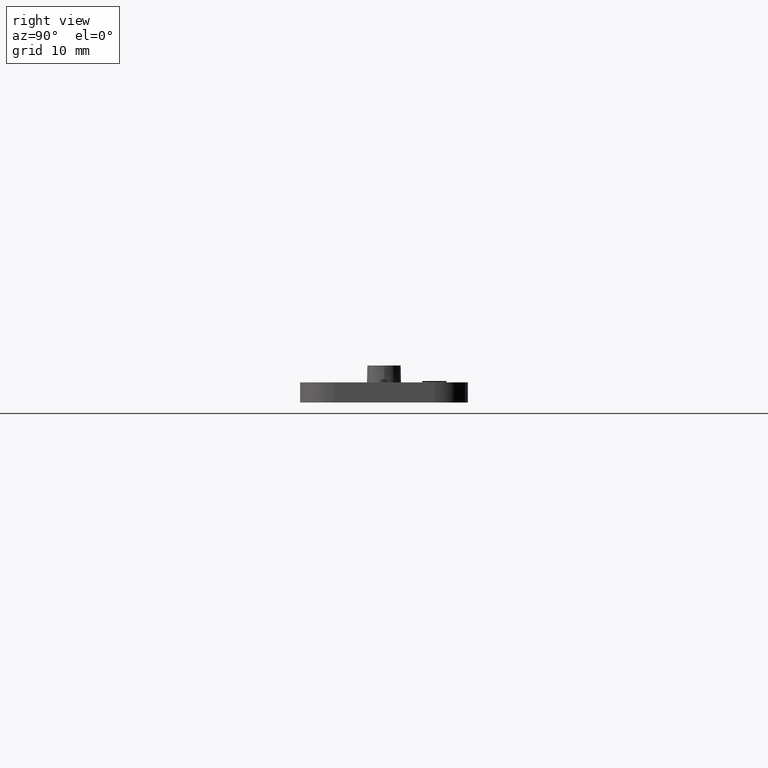
[diagram: clean part render]
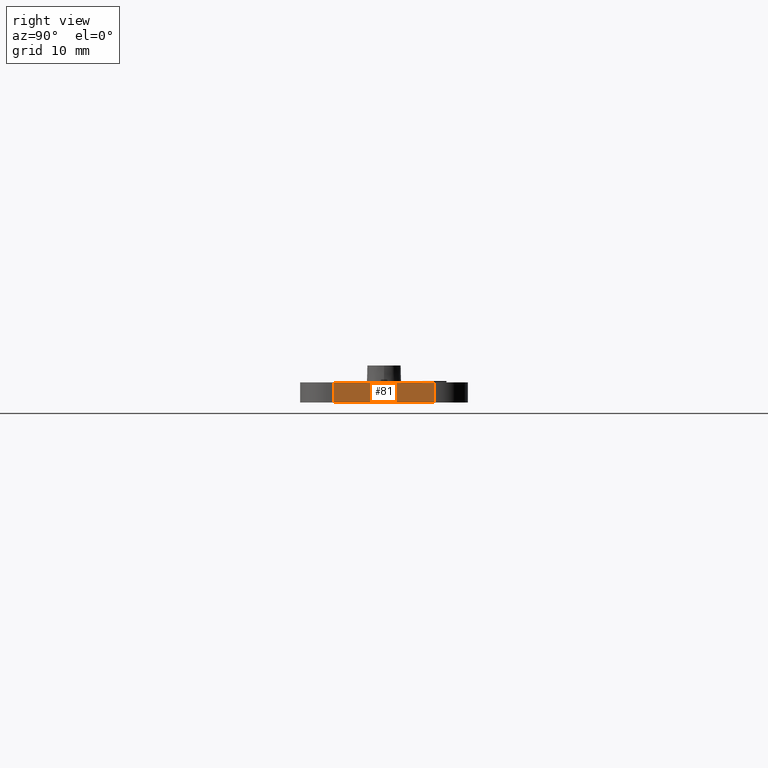
[diagram: same view with one face highlighted and labeled with its STEP entity id]
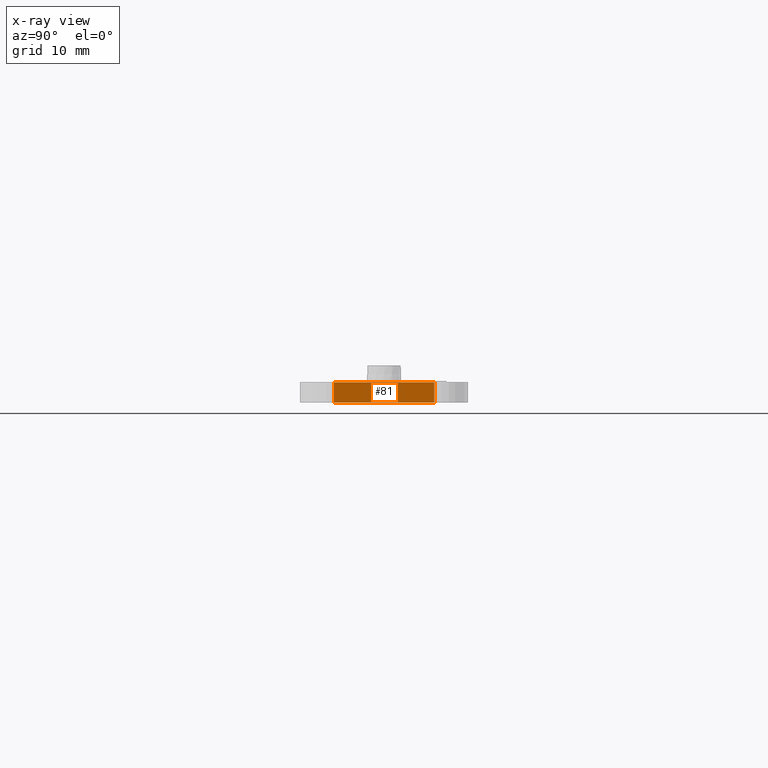
[diagram: x-ray of the same camera — body ghosted, the highlighted face saturated]
A machine part, right view. The second image highlights one B-rep face of the part: STEP entity #81.
The next image is the same camera in x-ray: the body ghosted, the highlighted face saturated — about 0% of this face is hidden behind the body in this view.
In plain terms, the highlighted planar face has unit normal (1, 0, -0).
Its self-contained STEP definition (entity closure, byte-faithful):
#81 = ADVANCED_FACE( '', ( #158 ), #159, .T. );
#158 = FACE_OUTER_BOUND( '', #291, .T. );
#159 = PLANE( '', #292 );
#291 = EDGE_LOOP( '', ( #495, #496, #497, #498 ) );
#292 = AXIS2_PLACEMENT_3D( '', #499, #500, #501 );
#495 = ORIENTED_EDGE( '', *, *, #947, .T. );
#496 = ORIENTED_EDGE( '', *, *, #894, .T. );
#497 = ORIENTED_EDGE( '', *, *, #948, .F. );
#498 = ORIENTED_EDGE( '', *, *, #940, .F. );
#499 = CARTESIAN_POINT( '', ( 53.0000000000000, -7.50000000000003, -92.8338482168494 ) );
#500 = DIRECTION( '', ( 1.00000000000000, 1.56787892564951E-030, -1.60751816480225E-016 ) );
#501 = DIRECTION( '', ( -1.59710267031829E-030, 1.00000000000000, -1.81794180051289E-016 ) );
#894 = EDGE_CURVE( '', #1055, #1052, #1056, .T. );
#940 = EDGE_CURVE( '', #1143, #1144, #1145, .T. );
#947 = EDGE_CURVE( '', #1143, #1055, #1156, .T. );
#948 = EDGE_CURVE( '', #1144, #1052, #1157, .T. );
#1052 = VERTEX_POINT( '', #1311 );
#1055 = VERTEX_POINT( '', #1314 );
#1056 = LINE( '', #1315, #1316 );
#1143 = VERTEX_POINT( '', #1441 );
#1144 = VERTEX_POINT( '', #1442 );
#1145 = LINE( '', #1443, #1444 );
#1156 = LINE( '', #1457, #1458 );
#1157 = LINE( '', #1459, #1460 );
#1311 = CARTESIAN_POINT( '', ( 53.0000000000000, -7.50000000000001, 2.99999999999991 ) );
#1314 = CARTESIAN_POINT( '', ( 53.0000000000000, 7.49999999999999, 2.99999999999989 ) );
#1315 = CARTESIAN_POINT( '', ( 53.0000000000000, 8.85730833295737E-015, 2.99999999999996 ) );
#1316 = VECTOR( '', #1672, 1000.00000000000 );
#1441 = CARTESIAN_POINT( '', ( 53.0000000000000, 7.49999999999999, -6.98481664217557E-014 ) );
#1442 = CARTESIAN_POINT( '', ( 53.0000000000000, -7.50000000000001, -6.89297116563889E-014 ) );
#1443 = CARTESIAN_POINT( '', ( 53.0000000000000, 8.67361737988401E-015, -4.16333634234434E-014 ) );
#1444 = VECTOR( '', #1732, 1000.00000000000 );
#1457 = CARTESIAN_POINT( '', ( 53.0000000000000, 7.49999999999997, -92.8338482168494 ) );
#1458 = VECTOR( '', #1747, 1000.00000000000 );
#1459 = CARTESIAN_POINT( '', ( 53.0000000000000, -7.50000000000003, -92.8338482168494 ) );
#1460 = VECTOR( '', #1748, 1000.00000000000 );
#1672 = DIRECTION( '', ( 1.57772181044202E-030, -1.00000000000000, 6.12303176911189E-017 ) );
#1732 = DIRECTION( '', ( 1.57772181044202E-030, -1.00000000000000, 6.12303176911189E-017 ) );
#1747 = DIRECTION( '', ( 1.60751816480225E-016, 1.81794180051289E-016, 1.00000000000000 ) );
#1748 = DIRECTION( '', ( 1.60751816480225E-016, 1.81794180051289E-016, 1.00000000000000 ) );